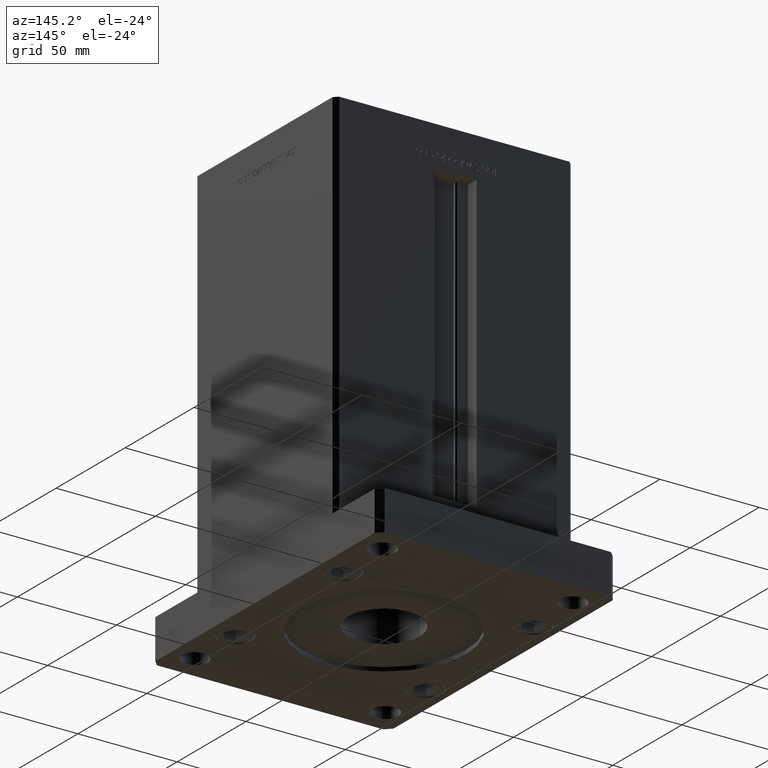
[diagram: clean part render]
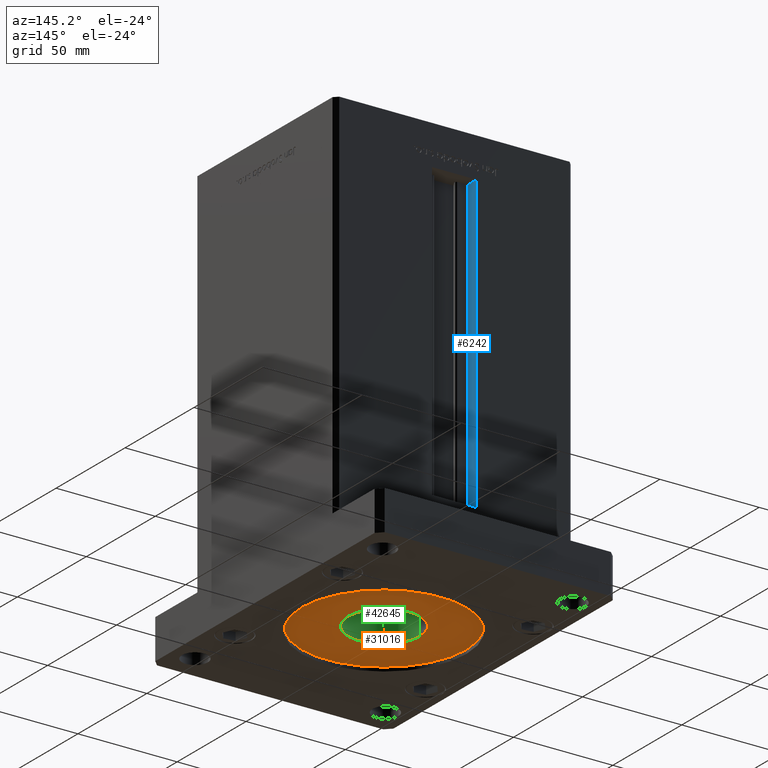
[diagram: same view with three faces highlighted in distinct colors, each labeled with its STEP entity id]
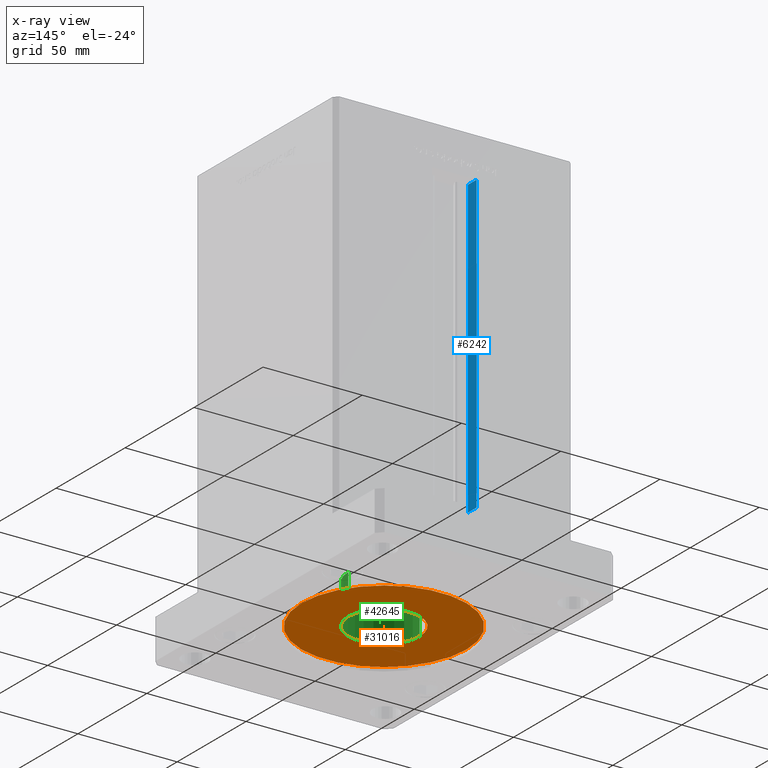
[diagram: x-ray of the same camera — body ghosted, the three highlighted faces saturated]
A machine part, auxiliary view with three faces highlighted in distinct colors.
The next image is the same camera in x-ray (body ghosted, the three faces saturated) — at least one of them is partly hidden behind the body in this view.
Their STEP definitions:

[orange] entity #31016 — the highlighted planar face has unit normal (0, 0, -1).
#871 = AXIS2_PLACEMENT_3D ( 'NONE', #38859, #30514, #27714 ) ;
#2925 = EDGE_CURVE ( 'NONE', #25132, #16055, #21000, .T. ) ;
#3974 = DIRECTION ( 'NONE',  ( -0.000000000000000000, -0.000000000000000000, 1.000000000000000000 ) ) ;
#7266 = CARTESIAN_POINT ( 'NONE',  ( 18.00000000000000000, 0.000000000000000000, 2.000000000000000000 ) ) ;
#7761 = CARTESIAN_POINT ( 'NONE',  ( 0.000000000000000000, 0.000000000000000000, 2.000000000000000000 ) ) ;
#9875 = DIRECTION ( 'NONE',  ( -0.000000000000000000, -0.000000000000000000, 1.000000000000000000 ) ) ;
#11765 = CARTESIAN_POINT ( 'NONE',  ( 41.50000000000000000, 5.082284216461515748E-15, 2.000000000000000000 ) ) ;
#13673 = AXIS2_PLACEMENT_3D ( 'NONE', #35684, #40517, #24326 ) ;
#13747 = CIRCLE ( 'NONE', #20621, 18.00000000000000000 ) ;
#14621 = AXIS2_PLACEMENT_3D ( 'NONE', #24160, #52993, #16077 ) ;
#15521 = ORIENTED_EDGE ( 'NONE', *, *, #38469, .T. ) ;
#16055 = VERTEX_POINT ( 'NONE', #33414 ) ;
#16077 = DIRECTION ( 'NONE',  ( -1.000000000000000000, 0.000000000000000000, 0.000000000000000000 ) ) ;
#17107 = ORIENTED_EDGE ( 'NONE', *, *, #33833, .T. ) ;
#20028 = PLANE ( 'NONE',  #13673 ) ;
#20621 = AXIS2_PLACEMENT_3D ( 'NONE', #34932, #9875, #22270 ) ;
#21000 = CIRCLE ( 'NONE', #51123, 18.00000000000000000 ) ;
#22270 = DIRECTION ( 'NONE',  ( -1.000000000000000000, 0.000000000000000000, 0.000000000000000000 ) ) ;
#22357 = VERTEX_POINT ( 'NONE', #26321 ) ;
#24160 = CARTESIAN_POINT ( 'NONE',  ( 0.000000000000000000, 0.000000000000000000, 2.000000000000000000 ) ) ;
#24326 = DIRECTION ( 'NONE',  ( -1.000000000000000000, 0.000000000000000000, -0.000000000000000000 ) ) ;
#25132 = VERTEX_POINT ( 'NONE', #7266 ) ;
#26321 = CARTESIAN_POINT ( 'NONE',  ( -41.50000000000000000, 0.000000000000000000, 2.000000000000000000 ) ) ;
#26686 = CIRCLE ( 'NONE', #871, 41.50000000000000000 ) ;
#27714 = DIRECTION ( 'NONE',  ( -1.000000000000000000, 0.000000000000000000, 0.000000000000000000 ) ) ;
#30514 = DIRECTION ( 'NONE',  ( 0.000000000000000000, 0.000000000000000000, -1.000000000000000000 ) ) ;
#31016 = ADVANCED_FACE ( 'NONE', ( #48597, #47813 ), #20028, .T. ) ;
#32701 = EDGE_LOOP ( 'NONE', ( #15521, #49467 ) ) ;
#32840 = EDGE_CURVE ( 'NONE', #43609, #22357, #45596, .T. ) ;
#33285 = EDGE_LOOP ( 'NONE', ( #40817, #17107 ) ) ;
#33414 = CARTESIAN_POINT ( 'NONE',  ( -18.00000000000000000, 2.204364238465235428E-15, 2.000000000000000000 ) ) ;
#33833 = EDGE_CURVE ( 'NONE', #16055, #25132, #13747, .T. ) ;
#34932 = CARTESIAN_POINT ( 'NONE',  ( 0.000000000000000000, 0.000000000000000000, 2.000000000000000000 ) ) ;
#35684 = CARTESIAN_POINT ( 'NONE',  ( 0.000000000000000000, 0.000000000000000000, 2.000000000000000000 ) ) ;
#38469 = EDGE_CURVE ( 'NONE', #22357, #43609, #26686, .T. ) ;
#38859 = CARTESIAN_POINT ( 'NONE',  ( 0.000000000000000000, 0.000000000000000000, 2.000000000000000000 ) ) ;
#40517 = DIRECTION ( 'NONE',  ( 0.000000000000000000, 0.000000000000000000, -1.000000000000000000 ) ) ;
#40817 = ORIENTED_EDGE ( 'NONE', *, *, #2925, .T. ) ;
#41180 = DIRECTION ( 'NONE',  ( -1.000000000000000000, 0.000000000000000000, 0.000000000000000000 ) ) ;
#43609 = VERTEX_POINT ( 'NONE', #11765 ) ;
#45596 = CIRCLE ( 'NONE', #14621, 41.50000000000000000 ) ;
#47813 = FACE_BOUND ( 'NONE', #33285, .T. ) ;
#48597 = FACE_OUTER_BOUND ( 'NONE', #32701, .T. ) ;
#49467 = ORIENTED_EDGE ( 'NONE', *, *, #32840, .T. ) ;
#51123 = AXIS2_PLACEMENT_3D ( 'NONE', #7761, #3974, #41180 ) ;
#52993 = DIRECTION ( 'NONE',  ( 0.000000000000000000, 0.000000000000000000, -1.000000000000000000 ) ) ;

[blue] entity #6242 — the highlighted planar face has unit normal (-1, 0, 0).
#1164 = DIRECTION ( 'NONE',  ( -0.000000000000000000, -0.000000000000000000, 1.000000000000000000 ) ) ;
#2105 = CARTESIAN_POINT ( 'NONE',  ( -11.25000000000000178, 44.50000000000000000, 0.000000000000000000 ) ) ;
#3724 = CARTESIAN_POINT ( 'NONE',  ( -11.25000000000000178, 51.00000000000000000, 148.5000000000000000 ) ) ;
#5175 = CARTESIAN_POINT ( 'NONE',  ( -11.25000000000000178, 44.50000000000000000, 148.5000000000000000 ) ) ;
#6242 = ADVANCED_FACE ( 'NONE', ( #51481 ), #35582, .F. ) ;
#6271 = LINE ( 'NONE', #38109, #39327 ) ;
#6712 = ORIENTED_EDGE ( 'NONE', *, *, #33893, .F. ) ;
#9611 = DIRECTION ( 'NONE',  ( -0.000000000000000000, -0.000000000000000000, 1.000000000000000000 ) ) ;
#10521 = CARTESIAN_POINT ( 'NONE',  ( -11.25000000000000178, 44.50000000000000000, 0.000000000000000000 ) ) ;
#12444 = AXIS2_PLACEMENT_3D ( 'NONE', #10521, #43131, #14830 ) ;
#14830 = DIRECTION ( 'NONE',  ( 0.000000000000000000, 0.000000000000000000, 1.000000000000000000 ) ) ;
#17430 = LINE ( 'NONE', #21744, #48206 ) ;
#17915 = LINE ( 'NONE', #39190, #38816 ) ;
#21506 = VERTEX_POINT ( 'NONE', #40629 ) ;
#21744 = CARTESIAN_POINT ( 'NONE',  ( -11.25000000000000178, 44.50000000000000000, 0.000000000000000000 ) ) ;
#23193 = VECTOR ( 'NONE', #43890, 1000.000000000000000 ) ;
#23421 = CARTESIAN_POINT ( 'NONE',  ( -11.25000000000000178, 51.00000000000000000, 0.000000000000000000 ) ) ;
#24927 = EDGE_CURVE ( 'NONE', #35032, #31503, #6271, .T. ) ;
#30957 = LINE ( 'NONE', #2105, #23193 ) ;
#31503 = VERTEX_POINT ( 'NONE', #3724 ) ;
#33893 = EDGE_CURVE ( 'NONE', #21506, #45570, #17430, .T. ) ;
#34622 = DIRECTION ( 'NONE',  ( 0.000000000000000000, 1.000000000000000000, 0.000000000000000000 ) ) ;
#34989 = EDGE_LOOP ( 'NONE', ( #6712, #51293, #47056, #38754 ) ) ;
#35032 = VERTEX_POINT ( 'NONE', #23421 ) ;
#35582 = PLANE ( 'NONE',  #12444 ) ;
#36980 = EDGE_CURVE ( 'NONE', #35032, #21506, #30957, .T. ) ;
#38109 = CARTESIAN_POINT ( 'NONE',  ( -11.25000000000000178, 51.00000000000000000, 0.000000000000000000 ) ) ;
#38754 = ORIENTED_EDGE ( 'NONE', *, *, #41607, .F. ) ;
#38816 = VECTOR ( 'NONE', #34622, 1000.000000000000000 ) ;
#39190 = CARTESIAN_POINT ( 'NONE',  ( -11.25000000000000178, 0.000000000000000000, 148.5000000000000000 ) ) ;
#39327 = VECTOR ( 'NONE', #1164, 1000.000000000000000 ) ;
#40629 = CARTESIAN_POINT ( 'NONE',  ( -11.25000000000000178, 44.50000000000000000, 0.000000000000000000 ) ) ;
#41607 = EDGE_CURVE ( 'NONE', #45570, #31503, #17915, .T. ) ;
#43131 = DIRECTION ( 'NONE',  ( -1.000000000000000000, 0.000000000000000000, 0.000000000000000000 ) ) ;
#43890 = DIRECTION ( 'NONE',  ( -0.000000000000000000, -1.000000000000000000, -0.000000000000000000 ) ) ;
#45570 = VERTEX_POINT ( 'NONE', #5175 ) ;
#47056 = ORIENTED_EDGE ( 'NONE', *, *, #24927, .T. ) ;
#48206 = VECTOR ( 'NONE', #9611, 1000.000000000000000 ) ;
#51293 = ORIENTED_EDGE ( 'NONE', *, *, #36980, .F. ) ;
#51481 = FACE_OUTER_BOUND ( 'NONE', #34989, .T. ) ;

[green] entity #42645 — the highlighted cylindrical surface (partial cylindrical patch) has radius 18 mm, axis along (0, 0, 1).
#475 = CARTESIAN_POINT ( 'NONE',  ( 0.000000000000000000, 0.000000000000000000, 0.000000000000000000 ) ) ;
#5621 = CARTESIAN_POINT ( 'NONE',  ( -18.00000000000000000, 2.204364238465235428E-15, 22.00000000000000000 ) ) ;
#7266 = CARTESIAN_POINT ( 'NONE',  ( 18.00000000000000000, 0.000000000000000000, 2.000000000000000000 ) ) ;
#9875 = DIRECTION ( 'NONE',  ( -0.000000000000000000, -0.000000000000000000, 1.000000000000000000 ) ) ;
#11298 = DIRECTION ( 'NONE',  ( -0.000000000000000000, -0.000000000000000000, 1.000000000000000000 ) ) ;
#12411 = VECTOR ( 'NONE', #11298, 1000.000000000000000 ) ;
#13747 = CIRCLE ( 'NONE', #20621, 18.00000000000000000 ) ;
#16055 = VERTEX_POINT ( 'NONE', #33414 ) ;
#20258 = CARTESIAN_POINT ( 'NONE',  ( 18.00000000000000000, 0.000000000000000000, 0.000000000000000000 ) ) ;
#20621 = AXIS2_PLACEMENT_3D ( 'NONE', #34932, #9875, #22270 ) ;
#20800 = LINE ( 'NONE', #20258, #30508 ) ;
#22270 = DIRECTION ( 'NONE',  ( -1.000000000000000000, 0.000000000000000000, 0.000000000000000000 ) ) ;
#24042 = CARTESIAN_POINT ( 'NONE',  ( 18.00000000000000000, 0.000000000000000000, 22.00000000000000000 ) ) ;
#24210 = CARTESIAN_POINT ( 'NONE',  ( -18.00000000000000000, 2.204364238465235428E-15, 0.000000000000000000 ) ) ;
#25132 = VERTEX_POINT ( 'NONE', #7266 ) ;
#27653 = AXIS2_PLACEMENT_3D ( 'NONE', #475, #32836, #42001 ) ;
#29176 = VERTEX_POINT ( 'NONE', #24042 ) ;
#30508 = VECTOR ( 'NONE', #32660, 1000.000000000000000 ) ;
#31255 = DIRECTION ( 'NONE',  ( 0.000000000000000000, 0.000000000000000000, 1.000000000000000000 ) ) ;
#31268 = EDGE_CURVE ( 'NONE', #39442, #29176, #34331, .T. ) ;
#32660 = DIRECTION ( 'NONE',  ( -0.000000000000000000, -0.000000000000000000, 1.000000000000000000 ) ) ;
#32836 = DIRECTION ( 'NONE',  ( -0.000000000000000000, -0.000000000000000000, 1.000000000000000000 ) ) ;
#33414 = CARTESIAN_POINT ( 'NONE',  ( -18.00000000000000000, 2.204364238465235428E-15, 2.000000000000000000 ) ) ;
#33833 = EDGE_CURVE ( 'NONE', #16055, #25132, #13747, .T. ) ;
#34331 = CIRCLE ( 'NONE', #36055, 18.00000000000000000 ) ;
#34932 = CARTESIAN_POINT ( 'NONE',  ( 0.000000000000000000, 0.000000000000000000, 2.000000000000000000 ) ) ;
#35565 = CARTESIAN_POINT ( 'NONE',  ( 0.000000000000000000, 0.000000000000000000, 22.00000000000000000 ) ) ;
#36003 = ORIENTED_EDGE ( 'NONE', *, *, #33833, .F. ) ;
#36055 = AXIS2_PLACEMENT_3D ( 'NONE', #35565, #31255, #43384 ) ;
#37423 = FACE_OUTER_BOUND ( 'NONE', #52035, .T. ) ;
#37696 = CYLINDRICAL_SURFACE ( 'NONE', #27653, 18.00000000000000000 ) ;
#39442 = VERTEX_POINT ( 'NONE', #5621 ) ;
#42001 = DIRECTION ( 'NONE',  ( 1.000000000000000000, 0.000000000000000000, 0.000000000000000000 ) ) ;
#42645 = ADVANCED_FACE ( 'NONE', ( #37423 ), #37696, .F. ) ;
#43307 = ORIENTED_EDGE ( 'NONE', *, *, #50008, .T. ) ;
#43384 = DIRECTION ( 'NONE',  ( 1.000000000000000000, 0.000000000000000000, 0.000000000000000000 ) ) ;
#50008 = EDGE_CURVE ( 'NONE', #16055, #39442, #51985, .T. ) ;
#51528 = ORIENTED_EDGE ( 'NONE', *, *, #31268, .T. ) ;
#51985 = LINE ( 'NONE', #24210, #12411 ) ;
#52035 = EDGE_LOOP ( 'NONE', ( #36003, #43307, #51528, #52106 ) ) ;
#52058 = EDGE_CURVE ( 'NONE', #25132, #29176, #20800, .T. ) ;
#52106 = ORIENTED_EDGE ( 'NONE', *, *, #52058, .F. ) ;